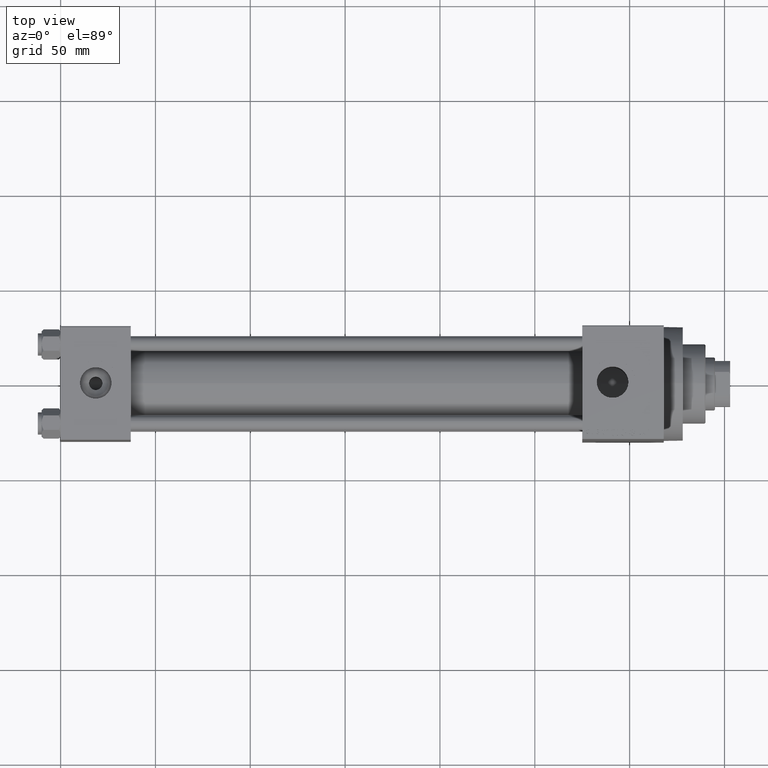
[diagram: clean part render]
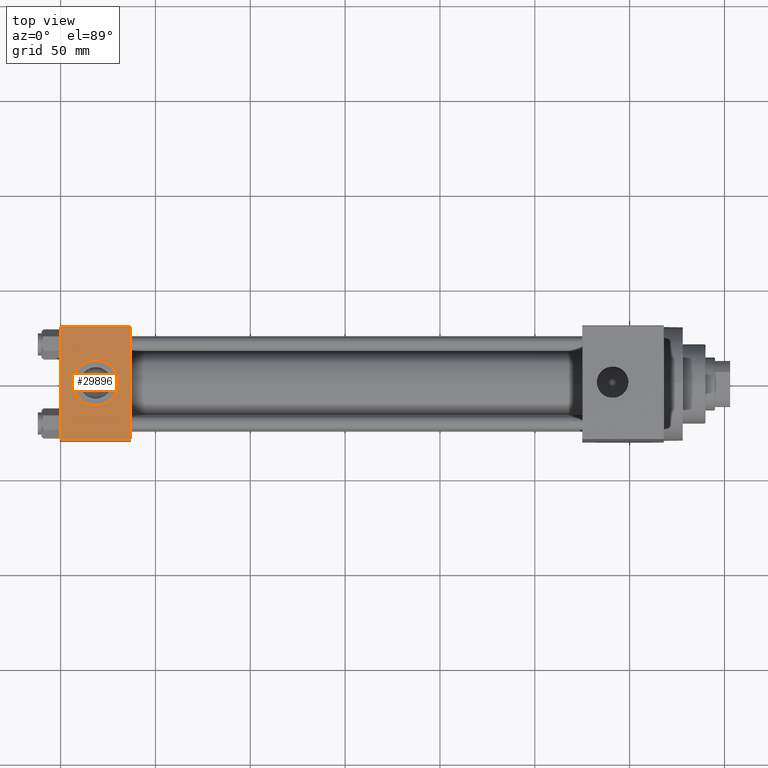
[diagram: same view with one face highlighted and labeled with its STEP entity id]
A machine part, top view. The second image highlights one B-rep face of the part: STEP entity #29896.
In plain terms, the highlighted planar face has unit normal (0, 0, -1).
Its self-contained STEP definition (entity closure, byte-faithful):
#2199 = DIRECTION ( 'NONE',  ( 0.000000000000000000, 0.000000000000000000, 1.000000000000000000 ) ) ;
#4300 = LINE ( 'NONE', #23762, #5493 ) ;
#4731 = EDGE_LOOP ( 'NONE', ( #22142, #25684, #15791, #28083 ) ) ;
#4835 = CARTESIAN_POINT ( 'NONE',  ( 0.000000000000000000, -29.49999999999998579, 29.99999999999999289 ) ) ;
#5493 = VECTOR ( 'NONE', #17250, 1000.000000000000000 ) ;
#7155 = DIRECTION ( 'NONE',  ( 0.000000000000000000, 1.000000000000000000, 1.156482317317871725E-16 ) ) ;
#7386 = FACE_OUTER_BOUND ( 'NONE', #4731, .T. ) ;
#7817 = AXIS2_PLACEMENT_3D ( 'NONE', #32410, #28800, #7155 ) ;
#8911 = CARTESIAN_POINT ( 'NONE',  ( 37.00000000000000000, -29.49999999999998579, 29.99999999999999289 ) ) ;
#10481 = VECTOR ( 'NONE', #37256, 1000.000000000000000 ) ;
#11760 = LINE ( 'NONE', #12234, #23913 ) ;
#12234 = CARTESIAN_POINT ( 'NONE',  ( 0.000000000000000000, 29.49999999999999289, 30.00000000000000000 ) ) ;
#12796 = CARTESIAN_POINT ( 'NONE',  ( 18.50000000000000000, -3.469446951953614978E-15, 29.99999999999999645 ) ) ;
#14450 = ORIENTED_EDGE ( 'NONE', *, *, #16953, .F. ) ;
#15773 = EDGE_LOOP ( 'NONE', ( #26113, #14450 ) ) ;
#15791 = ORIENTED_EDGE ( 'NONE', *, *, #28962, .F. ) ;
#15806 = EDGE_CURVE ( 'NONE', #39249, #40863, #17425, .T. ) ;
#16953 = EDGE_CURVE ( 'NONE', #40863, #39249, #19751, .T. ) ;
#17250 = DIRECTION ( 'NONE',  ( 0.000000000000000000, -1.000000000000000000, -1.156482317317871725E-16 ) ) ;
#17425 = CIRCLE ( 'NONE', #22038, 12.00000000000000000 ) ;
#17451 = CARTESIAN_POINT ( 'NONE',  ( 0.000000000000000000, 29.99999999999999289, 30.00000000000000000 ) ) ;
#19751 = CIRCLE ( 'NONE', #33586, 12.00000000000000000 ) ;
#21634 = VERTEX_POINT ( 'NONE', #29013 ) ;
#22038 = AXIS2_PLACEMENT_3D ( 'NONE', #12796, #45980, #45502 ) ;
#22142 = ORIENTED_EDGE ( 'NONE', *, *, #25592, .T. ) ;
#23677 = CARTESIAN_POINT ( 'NONE',  ( 0.000000000000000000, 29.49999999999999289, 30.00000000000000000 ) ) ;
#23762 = CARTESIAN_POINT ( 'NONE',  ( 37.00000000000000000, 29.99999999999999289, 30.00000000000000000 ) ) ;
#23913 = VECTOR ( 'NONE', #26909, 1000.000000000000000 ) ;
#24026 = VERTEX_POINT ( 'NONE', #8911 ) ;
#25592 = EDGE_CURVE ( 'NONE', #47026, #34538, #39806, .T. ) ;
#25664 = FACE_BOUND ( 'NONE', #15773, .T. ) ;
#25684 = ORIENTED_EDGE ( 'NONE', *, *, #41313, .T. ) ;
#26113 = ORIENTED_EDGE ( 'NONE', *, *, #15806, .F. ) ;
#26761 = DIRECTION ( 'NONE',  ( 1.000000000000000000, 0.000000000000000000, 0.000000000000000000 ) ) ;
#26909 = DIRECTION ( 'NONE',  ( -1.000000000000000000, 0.000000000000000000, 0.000000000000000000 ) ) ;
#28083 = ORIENTED_EDGE ( 'NONE', *, *, #28803, .T. ) ;
#28571 = CARTESIAN_POINT ( 'NONE',  ( 30.50000000000000000, -3.469446951953614978E-15, 29.99999999999999645 ) ) ;
#28800 = DIRECTION ( 'NONE',  ( 0.000000000000000000, 1.156482317317871725E-16, -1.000000000000000000 ) ) ;
#28803 = EDGE_CURVE ( 'NONE', #21634, #47026, #11760, .T. ) ;
#28962 = EDGE_CURVE ( 'NONE', #21634, #24026, #4300, .T. ) ;
#29013 = CARTESIAN_POINT ( 'NONE',  ( 37.00000000000000000, 29.49999999999999289, 30.00000000000000000 ) ) ;
#29896 = ADVANCED_FACE ( 'NONE', ( #25664, #7386 ), #39845, .F. ) ;
#31751 = CARTESIAN_POINT ( 'NONE',  ( 18.50000000000000000, -3.469446951953614978E-15, 29.99999999999999645 ) ) ;
#32066 = CARTESIAN_POINT ( 'NONE',  ( 6.499999999999997335, -1.999870792976790833E-15, 29.99999999999999645 ) ) ;
#32410 = CARTESIAN_POINT ( 'NONE',  ( 37.00000000000000000, 29.99999999999999289, 30.00000000000000000 ) ) ;
#33586 = AXIS2_PLACEMENT_3D ( 'NONE', #31751, #2199, #26761 ) ;
#34538 = VERTEX_POINT ( 'NONE', #4835 ) ;
#37256 = DIRECTION ( 'NONE',  ( 1.000000000000000000, 0.000000000000000000, 0.000000000000000000 ) ) ;
#37561 = VECTOR ( 'NONE', #46792, 1000.000000000000000 ) ;
#39249 = VERTEX_POINT ( 'NONE', #28571 ) ;
#39806 = LINE ( 'NONE', #17451, #37561 ) ;
#39845 = PLANE ( 'NONE',  #7817 ) ;
#39932 = CARTESIAN_POINT ( 'NONE',  ( 37.00000000000000000, -29.50000000000000000, 29.99999999999999289 ) ) ;
#40863 = VERTEX_POINT ( 'NONE', #32066 ) ;
#41313 = EDGE_CURVE ( 'NONE', #34538, #24026, #47144, .T. ) ;
#45502 = DIRECTION ( 'NONE',  ( 1.000000000000000000, 0.000000000000000000, 0.000000000000000000 ) ) ;
#45980 = DIRECTION ( 'NONE',  ( 0.000000000000000000, 0.000000000000000000, 1.000000000000000000 ) ) ;
#46792 = DIRECTION ( 'NONE',  ( 0.000000000000000000, -1.000000000000000000, -1.156482317317871725E-16 ) ) ;
#47026 = VERTEX_POINT ( 'NONE', #23677 ) ;
#47144 = LINE ( 'NONE', #39932, #10481 ) ;